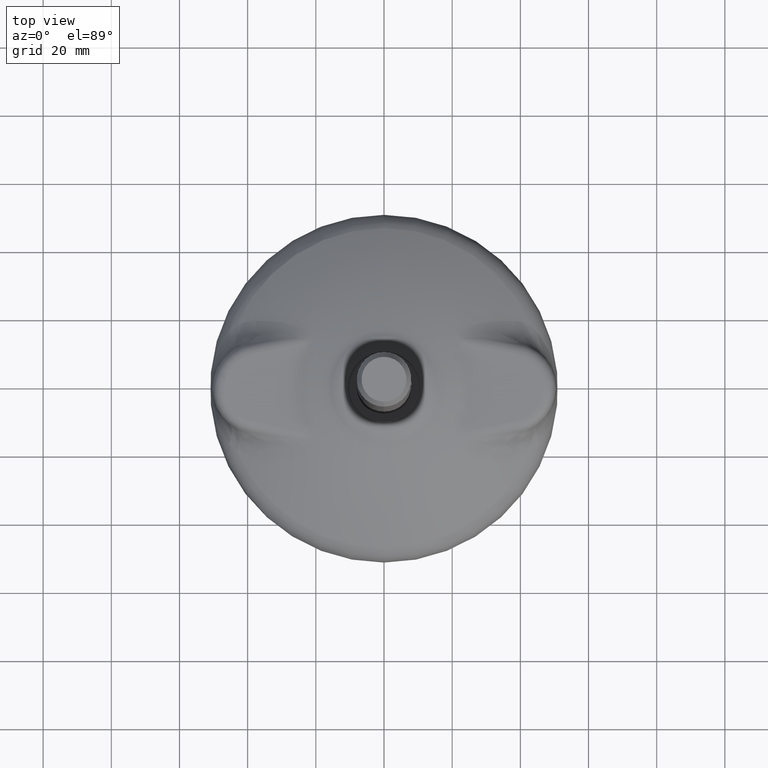
[diagram: clean part render]
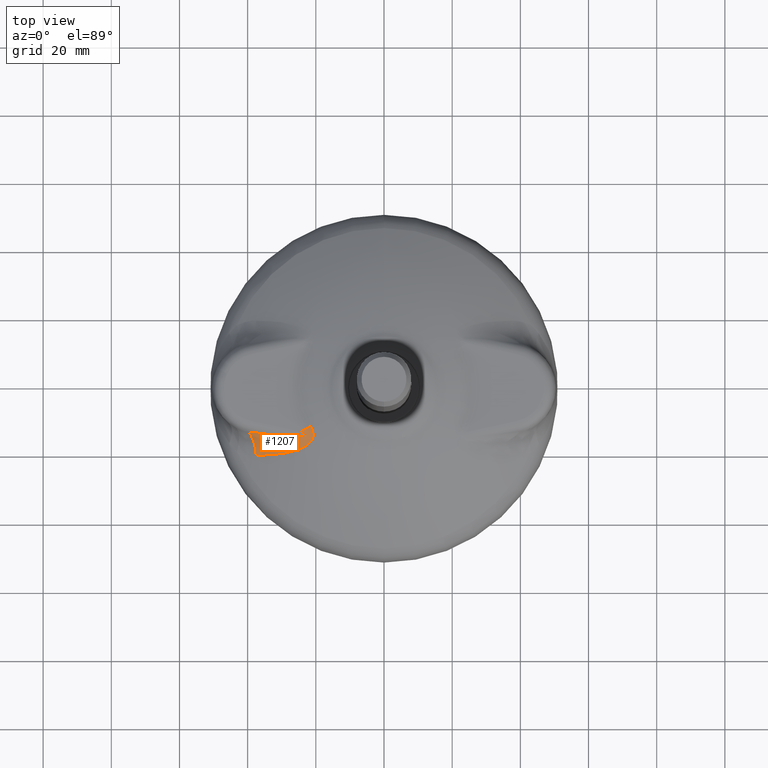
[diagram: same view with one face highlighted and labeled with its STEP entity id]
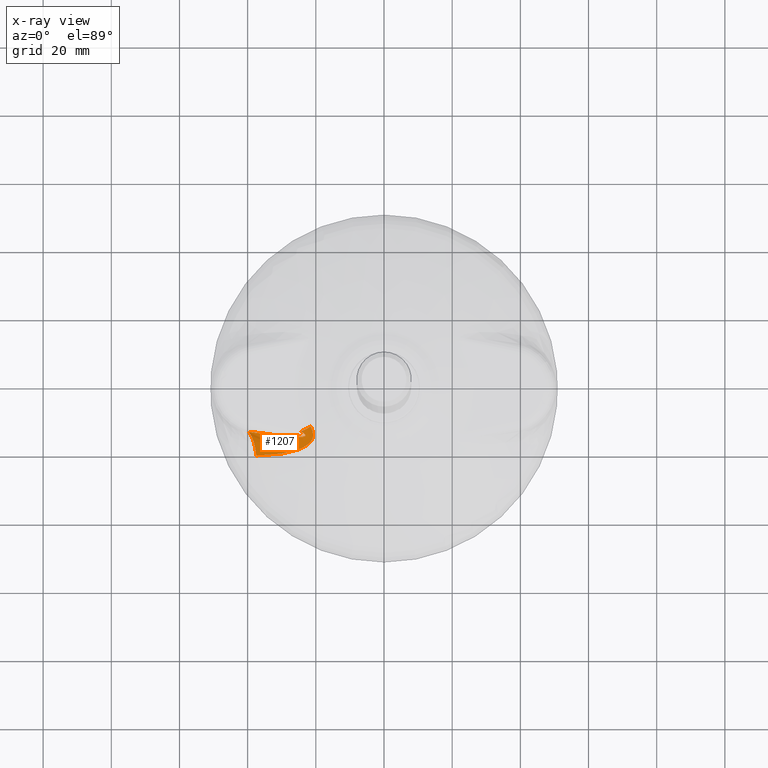
[diagram: x-ray of the same camera — body ghosted, the highlighted face saturated]
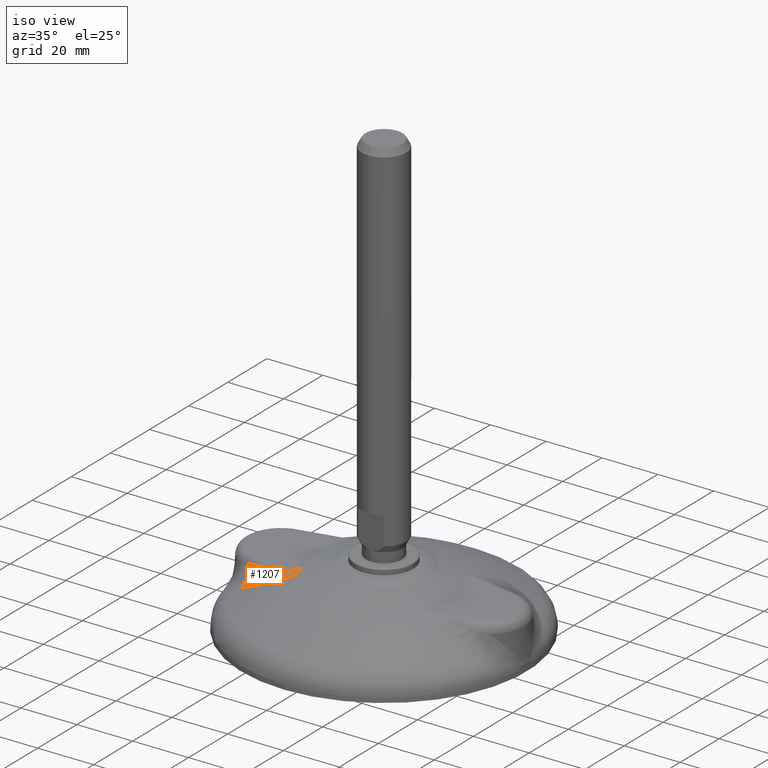
[diagram: same view with one face highlighted and labeled with its STEP entity id]
A machine part, top view. The second image highlights one B-rep face of the part: STEP entity #1207.
The next image is the same camera in x-ray: the body ghosted, the highlighted face saturated — about 0% of this face is hidden behind the body in this view.
A second angle (iso view) of the same face is appended — the face is thin or edge-on in the first view.
In plain terms, the highlighted face is a freeform B-spline surface patch.
Its self-contained STEP definition (entity closure, byte-faithful):
#33=(
BOUNDED_SURFACE()
B_SPLINE_SURFACE(2,3,((#5340,#5341,#5342,#5343,#5344,#5345,#5346,#5347,
#5348,#5349,#5350,#5351,#5352,#5353,#5354,#5355,#5356,#5357,#5358,#5359,
#5360,#5361,#5362,#5363,#5364,#5365,#5366,#5367,#5368,#5369,#5370,#5371,
#5372,#5373,#5374,#5375,#5376,#5377,#5378,#5379,#5380,#5381,#5382,#5383,
#5384,#5385,#5386,#5387,#5388,#5389),(#5390,#5391,#5392,#5393,#5394,#5395,
#5396,#5397,#5398,#5399,#5400,#5401,#5402,#5403,#5404,#5405,#5406,#5407,
#5408,#5409,#5410,#5411,#5412,#5413,#5414,#5415,#5416,#5417,#5418,#5419,
#5420,#5421,#5422,#5423,#5424,#5425,#5426,#5427,#5428,#5429,#5430,#5431,
#5432,#5433,#5434,#5435,#5436,#5437,#5438,#5439),(#5440,#5441,#5442,#5443,
#5444,#5445,#5446,#5447,#5448,#5449,#5450,#5451,#5452,#5453,#5454,#5455,
#5456,#5457,#5458,#5459,#5460,#5461,#5462,#5463,#5464,#5465,#5466,#5467,
#5468,#5469,#5470,#5471,#5472,#5473,#5474,#5475,#5476,#5477,#5478,#5479,
#5480,#5481,#5482,#5483,#5484,#5485,#5486,#5487,#5488,#5489)),
 .UNSPECIFIED.,.F.,.F.,.F.)
B_SPLINE_SURFACE_WITH_KNOTS((3,3),(4,2,2,2,2,2,2,2,2,2,2,2,2,2,2,2,2,2,
2,2,2,2,2,2,4),(0.,1.),(2.298509E-17,0.003111461827844,0.006222923655688,
0.009334385483532,0.010890116397454,0.012445847311376,0.013223712768337,
0.014001578225298,0.01555730913922,0.017113040053142,0.017890905510102,
0.018668770967063,0.019057703695544,0.019446636424024,0.020224501880985,
0.020613434609466,0.020807900973706,0.021002367337946,0.021780232794907,
0.022169165523388,0.022558098251868,0.022947030980349,0.023335963708829,
0.02411382916579,0.024891694622751),.UNSPECIFIED.)
GEOMETRIC_REPRESENTATION_ITEM()
RATIONAL_B_SPLINE_SURFACE(((1.,1.,1.,1.,1.,1.,1.,1.,1.,1.,1.,1.,1.,1.,1.,
1.,1.,1.,1.,1.,1.,1.,1.,1.,1.,1.,1.,1.,1.,1.,1.,1.,1.,1.,1.,1.,1.,1.,1.,
1.,1.,1.,1.,1.,1.,1.,1.,1.,1.,1.),(0.898510834248908,0.905579572441423,
0.912308116967104,0.925126065878921,0.931215731626161,0.942783777935627,
0.948262376442578,0.956028691234639,0.95854204467019,0.963416309284923,
0.965777274821306,0.969200925434751,0.970322481037165,0.972525201378957,
0.973607452985401,0.976773851942338,0.978783066513573,0.982573134624064,
0.984354992046024,0.986815492776913,0.987602208696837,0.989070252964773,
0.989753585728474,0.99068667390055,0.99098231125614,0.991538903665915,0.991797758654842,
0.992506692020472,0.992891548371387,0.993312117955322,0.993426089976647,
0.993553457520245,0.993588616143068,0.993643000508351,0.993662399331255,
0.993720768875207,0.993643962880575,0.993348910787052,0.993220784050269,
0.992914236584693,0.992735352280686,0.992331245123687,0.992106014775601,
0.991613152745867,0.991346337317122,0.990499785167757,0.989871268855994,
0.988511453816972,0.987779839759137,0.987004622672797),(1.,1.,1.,1.,1.,
1.,1.,1.,1.,1.,1.,1.,1.,1.,1.,1.,1.,1.,1.,1.,1.,1.,1.,1.,1.,1.,1.,1.,1.,
1.,1.,1.,1.,1.,1.,1.,1.,1.,1.,1.,1.,1.,1.,1.,1.,1.,1.,1.,1.,1.)))
REPRESENTATION_ITEM('')
SURFACE()
);
#57=B_SPLINE_CURVE_WITH_KNOTS('',3,(#2063,#2064,#2065,#2066,#2067,#2068,
#2069,#2070,#2071,#2072,#2073,#2074,#2075,#2076,#2077,#2078,#2079,#2080,
#2081,#2082,#2083,#2084,#2085,#2086,#2087,#2088,#2089,#2090,#2091,#2092,
#2093,#2094,#2095,#2096,#2097,#2098,#2099,#2100,#2101,#2102,#2103,#2104,
#2105,#2106,#2107,#2108,#2109,#2110,#2111,#2112,#2113,#2114,#2115,#2116,
#2117,#2118,#2119,#2120,#2121,#2122,#2123,#2124,#2125,#2126,#2127,#2128,
#2129,#2130,#2131,#2132,#2133,#2134,#2135,#2136,#2137,#2138,#2139,#2140,
#2141,#2142,#2143,#2144,#2145,#2146,#2147,#2148,#2149,#2150,#2151,#2152,
#2153,#2154,#2155,#2156,#2157,#2158,#2159,#2160,#2161,#2162,#2163,#2164,
#2165,#2166,#2167,#2168,#2169,#2170,#2171,#2172,#2173,#2174,#2175,#2176,
#2177,#2178,#2179,#2180,#2181,#2182,#2183,#2184,#2185,#2186,#2187,#2188,
#2189,#2190,#2191,#2192,#2193,#2194,#2195,#2196,#2197,#2198,#2199,#2200,
#2201,#2202,#2203,#2204,#2205,#2206,#2207,#2208,#2209,#2210,#2211,#2212,
#2213,#2214,#2215,#2216,#2217,#2218,#2219,#2220,#2221,#2222,#2223,#2224,
#2225,#2226,#2227,#2228,#2229,#2230,#2231,#2232,#2233,#2234,#2235,#2236,
#2237,#2238,#2239,#2240,#2241,#2242,#2243,#2244,#2245,#2246,#2247,#2248,
#2249,#2250,#2251,#2252,#2253,#2254,#2255,#2256,#2257,#2258,#2259,#2260,
#2261,#2262,#2263,#2264,#2265,#2266,#2267,#2268,#2269,#2270,#2271,#2272,
#2273,#2274,#2275,#2276,#2277,#2278,#2279,#2280,#2281,#2282,#2283,#2284,
#2285,#2286,#2287,#2288,#2289,#2290,#2291,#2292,#2293,#2294,#2295,#2296,
#2297,#2298,#2299,#2300,#2301,#2302,#2303,#2304,#2305,#2306,#2307,#2308,
#2309,#2310,#2311,#2312,#2313,#2314,#2315),.UNSPECIFIED.,.F.,.F.,(4,3,3,
3,3,3,3,3,3,3,3,3,3,3,3,3,3,3,3,3,3,3,3,3,3,3,3,3,3,3,3,3,3,3,3,3,3,3,3,
3,3,3,3,3,3,3,3,3,3,3,3,3,3,3,3,3,3,3,3,3,3,3,3,3,3,3,3,3,3,3,3,3,3,3,3,
3,3,3,3,3,3,3,3,3,4),(0.,0.129197721236781,0.149987509894002,0.224276501332896,
0.264662235091565,0.29856549277179,0.374999999999998,0.445341528630758,
0.499999999999997,0.517853515961266,0.569796400226128,0.589562739670028,
0.624999999999997,0.625022374115222,0.649533300427536,0.660106406105716,
0.685308507277894,0.687499999999996,0.71117754281104,0.728099209588724,
0.748261641979767,0.749999999999996,0.766085564177398,0.781119846213213,
0.791896872847794,0.803091343308791,0.812499999999996,0.821332193592574,
0.830462768327061,0.83910562481851,0.843749999999996,0.848120168705203,
0.854547394693954,0.859374999999996,0.860278852121137,0.865115814778352,
0.86967705039263,0.871338524752808,0.874999999999996,0.878697846187014,
0.882216837280516,0.882812499999996,0.885725728747919,0.88848952723334,
0.889554847538066,0.890624999999996,0.893080237468437,0.895407169860875,
0.896629171507443,0.898437499999996,0.899734592337904,0.901906821906851,
0.902343749999997,0.902602942043005,0.904426471021501,0.906249999999997,
0.907789698759843,0.909353231817369,0.910156249999997,0.912209189913498,
0.913775305312344,0.914062499999998,0.916446211488564,0.918967849467004,
0.920593698558129,0.921874999999998,0.924690417214462,0.927656983766406,
0.928708668980382,0.929687499999998,0.933367409034133,0.937223305468739,
0.937499999999999,0.938132410202919,0.942372988913798,0.946910639661995,
0.948746516064861,0.953124999999999,0.959586469365242,0.966410373454412,
0.968749999999999,0.972865191358434,0.981736422161939,0.991156493889139,
1.),.UNSPECIFIED.);
#74=B_SPLINE_CURVE_WITH_KNOTS('',3,(#3315,#3316,#3317,#3318,#3319,#3320,
#3321,#3322,#3323,#3324,#3325,#3326,#3327,#3328,#3329,#3330,#3331,#3332,
#3333,#3334,#3335,#3336,#3337,#3338,#3339,#3340,#3341,#3342,#3343,#3344,
#3345,#3346,#3347,#3348,#3349,#3350,#3351,#3352,#3353,#3354,#3355,#3356,
#3357,#3358,#3359,#3360,#3361,#3362,#3363,#3364,#3365,#3366,#3367,#3368,
#3369,#3370,#3371,#3372,#3373,#3374,#3375,#3376,#3377,#3378,#3379,#3380,
#3381,#3382,#3383,#3384,#3385,#3386,#3387,#3388,#3389,#3390,#3391,#3392,
#3393,#3394,#3395,#3396,#3397,#3398,#3399,#3400,#3401,#3402,#3403,#3404,
#3405,#3406,#3407,#3408,#3409,#3410,#3411,#3412,#3413,#3414,#3415,#3416,
#3417,#3418,#3419,#3420,#3421,#3422,#3423,#3424,#3425,#3426,#3427,#3428,
#3429,#3430,#3431,#3432,#3433,#3434,#3435,#3436,#3437,#3438,#3439,#3440,
#3441,#3442,#3443,#3444,#3445,#3446,#3447,#3448,#3449,#3450,#3451,#3452,
#3453,#3454,#3455,#3456,#3457,#3458,#3459,#3460,#3461,#3462,#3463,#3464,
#3465,#3466,#3467,#3468),.UNSPECIFIED.,.F.,.F.,(4,3,3,3,3,3,3,3,3,3,3,3,
3,3,3,3,3,3,3,3,3,3,3,3,3,3,3,3,3,3,3,3,3,3,3,3,3,3,3,3,3,3,3,3,3,3,3,3,
3,3,3,4),(0.,0.030204811064784,0.03125,0.0502740707823176,0.0604664544251353,
0.062500000000001,0.074541883804142,0.0756288984887031,0.078125000000001,
0.0908348487928982,0.093750000000002,0.105255062287116,0.106099535359361,
0.109375000000002,0.119340557230366,0.121432066182604,0.125000000000002,
0.152329162091134,0.156250000000003,0.160104553921435,0.167899058199915,
0.171875000000003,0.183527053335978,0.187500000000003,0.214904397286689,
0.218750000000004,0.230645060430719,0.234375000000004,0.246397942669153,
0.250000000000004,0.277910693240157,0.281250000000004,0.309424038940148,
0.312500000000004,0.363404063042249,0.372371779612796,0.375000000000004,
0.43168552653651,0.435247778132894,0.437500000000004,0.466668689002127,
0.468750000000004,0.498076749880921,0.500000000000004,0.560864087320551,
0.623625116674514,0.625000000000003,0.749106126180359,0.750000000000002,
0.874559929998551,0.875000000000001,1.),.UNSPECIFIED.);
#228=FACE_OUTER_BOUND('',#314,.T.);
#314=EDGE_LOOP('',(#876,#877,#878,#879));
#415=CIRCLE('',#1345,10.);
#417=CIRCLE('',#1347,10.);
#473=VERTEX_POINT('',#1812);
#477=VERTEX_POINT('',#2061);
#499=VERTEX_POINT('',#3312);
#500=VERTEX_POINT('',#3314);
#583=EDGE_CURVE('',#477,#473,#57,.T.);
#610=EDGE_CURVE('',#499,#500,#74,.T.);
#647=EDGE_CURVE('',#477,#500,#415,.T.);
#649=EDGE_CURVE('',#473,#499,#417,.T.);
#876=ORIENTED_EDGE('',*,*,#647,.T.);
#877=ORIENTED_EDGE('',*,*,#610,.F.);
#878=ORIENTED_EDGE('',*,*,#649,.F.);
#879=ORIENTED_EDGE('',*,*,#583,.F.);
#1207=ADVANCED_FACE('',(#228),#33,.T.);
#1345=AXIS2_PLACEMENT_3D('',#5248,#1569,#1570);
#1347=AXIS2_PLACEMENT_3D('',#5490,#1573,#1574);
#1569=DIRECTION('center_axis',(-0.908039969503642,0.015589487399068,-0.418593336863428));
#1570=DIRECTION('ref_axis',(-0.418644211949312,5.20417042793042E-18,0.908150331058322));
#1573=DIRECTION('center_axis',(0.468711974674446,-0.883351054109736,2.326695E-15));
#1574=DIRECTION('ref_axis',(0.883351054109736,0.468711974674446,0.));
#1812=CARTESIAN_POINT('',(-24.3071728847044,-12.8975484305336,18.));
#2061=CARTESIAN_POINT('',(-39.6508092109384,-12.9415398394903,15.840422178905));
#2063=CARTESIAN_POINT('Ctrl Pts',(-39.6508092109384,-12.9415398394903,15.840422178905));
#2064=CARTESIAN_POINT('Ctrl Pts',(-38.8608406765445,-13.068222442973,15.9376983131238));
#2065=CARTESIAN_POINT('Ctrl Pts',(-38.0701524372592,-13.190383848039,16.0336514400586));
#2066=CARTESIAN_POINT('Ctrl Pts',(-37.2785687658484,-13.3077290570127,16.1283881128877));
#2067=CARTESIAN_POINT('Ctrl Pts',(-37.1511914632489,-13.3266116044071,16.1436326186526));
#2068=CARTESIAN_POINT('Ctrl Pts',(-37.0237910348323,-13.3453693530049,16.1588456123139));
#2069=CARTESIAN_POINT('Ctrl Pts',(-36.8963668197713,-13.3640009673947,16.1740275222398));
#2070=CARTESIAN_POINT('Ctrl Pts',(-36.4410367258559,-13.4305780675622,16.2282776541246));
#2071=CARTESIAN_POINT('Ctrl Pts',(-35.9853920536969,-13.4955518377664,16.2821305069727));
#2072=CARTESIAN_POINT('Ctrl Pts',(-35.529479506415,-13.558778042943,16.3356151750624));
#2073=CARTESIAN_POINT('Ctrl Pts',(-35.2816317109995,-13.5931497128146,16.3646910519023));
#2074=CARTESIAN_POINT('Ctrl Pts',(-35.0337078532916,-13.6270043882334,16.3936577627818));
#2075=CARTESIAN_POINT('Ctrl Pts',(-34.7857050893341,-13.6603194048681,16.4225212378121));
#2076=CARTESIAN_POINT('Ctrl Pts',(-34.5775102435476,-13.6882868945847,16.4467517207185));
#2077=CARTESIAN_POINT('Ctrl Pts',(-34.3692569338344,-13.7158744506831,16.4709097839303));
#2078=CARTESIAN_POINT('Ctrl Pts',(-34.1609337729318,-13.7430693924291,16.4950000502192));
#2079=CARTESIAN_POINT('Ctrl Pts',(-33.6912715859525,-13.8043800779999,16.5493112804307));
#2080=CARTESIAN_POINT('Ctrl Pts',(-33.2212350940584,-13.8637142470373,16.6032755486777));
#2081=CARTESIAN_POINT('Ctrl Pts',(-32.7508851064067,-13.9207346777285,16.6569675257322));
#2082=CARTESIAN_POINT('Ctrl Pts',(-32.3180290794281,-13.9732097234043,16.7063794455337));
#2083=CARTESIAN_POINT('Ctrl Pts',(-31.8850678580336,-14.0237063133245,16.7555424944819));
#2084=CARTESIAN_POINT('Ctrl Pts',(-31.4518640372888,-14.0719658421515,16.8045375820086));
#2085=CARTESIAN_POINT('Ctrl Pts',(-31.1152455546635,-14.1094656253668,16.842608926788));
#2086=CARTESIAN_POINT('Ctrl Pts',(-30.7784939977113,-14.1456014067998,16.8805804889869));
#2087=CARTESIAN_POINT('Ctrl Pts',(-30.4416631651392,-14.1801331863848,16.9185036887527));
#2088=CARTESIAN_POINT('Ctrl Pts',(-30.331641525402,-14.1914125665531,16.9308908345209));
#2089=CARTESIAN_POINT('Ctrl Pts',(-30.2216168848694,-14.2025200405108,16.9432723195816));
#2090=CARTESIAN_POINT('Ctrl Pts',(-30.1115812411369,-14.2134478673479,16.9556510773494));
#2091=CARTESIAN_POINT('Ctrl Pts',(-29.7914443717491,-14.245241204072,16.991665741546));
#2092=CARTESIAN_POINT('Ctrl Pts',(-29.4712054657733,-14.2755230247145,17.0276564129207));
#2093=CARTESIAN_POINT('Ctrl Pts',(-29.1508067089835,-14.3039629097578,17.0637112019618));
#2094=CARTESIAN_POINT('Ctrl Pts',(-29.0288822014452,-14.3147854204725,17.0774314874032));
#2095=CARTESIAN_POINT('Ctrl Pts',(-28.9069348823041,-14.32534081377,17.0911610686767));
#2096=CARTESIAN_POINT('Ctrl Pts',(-28.7849629196435,-14.3356093477751,17.1049048558053));
#2097=CARTESIAN_POINT('Ctrl Pts',(-28.5662905546349,-14.3540188622822,17.1295448334694));
#2098=CARTESIAN_POINT('Ctrl Pts',(-28.3475440971763,-14.3715014348183,17.1542311715295));
#2099=CARTESIAN_POINT('Ctrl Pts',(-28.1287718083451,-14.3878847775933,17.1789991651755));
#2100=CARTESIAN_POINT('Ctrl Pts',(-28.1286336815161,-14.387895121587,17.1790148030081));
#2101=CARTESIAN_POINT('Ctrl Pts',(-28.128495554647,-14.3879054651443,17.1790304408767));
#2102=CARTESIAN_POINT('Ctrl Pts',(-28.1283574277377,-14.3879158082651,17.1790460787814));
#2103=CARTESIAN_POINT('Ctrl Pts',(-27.9770388856878,-14.3992467355262,17.1961774614575));
#2104=CARTESIAN_POINT('Ctrl Pts',(-27.8255585948224,-14.4100614435275,17.2133649463955));
#2105=CARTESIAN_POINT('Ctrl Pts',(-27.6741195862456,-14.4202711455026,17.2306038841186));
#2106=CARTESIAN_POINT('Ctrl Pts',(-27.6087944075446,-14.4246752327472,17.2380401232882));
#2107=CARTESIAN_POINT('Ctrl Pts',(-27.5434774342817,-14.4289665269655,17.2454859000697));
#2108=CARTESIAN_POINT('Ctrl Pts',(-27.4781879395332,-14.4331368029432,17.2529406268619));
#2109=CARTESIAN_POINT('Ctrl Pts',(-27.3225636128484,-14.4430770910955,17.2707097464133));
#2110=CARTESIAN_POINT('Ctrl Pts',(-27.1669517062652,-14.4523539441815,17.2885426474129));
#2111=CARTESIAN_POINT('Ctrl Pts',(-27.0112023604582,-14.4608400252374,17.3064898350563));
#2112=CARTESIAN_POINT('Ctrl Pts',(-26.9976589040823,-14.4615779472362,17.308050464102));
#2113=CARTESIAN_POINT('Ctrl Pts',(-26.9841144362974,-14.4623098720571,17.3096119570987));
#2114=CARTESIAN_POINT('Ctrl Pts',(-26.9705688749999,-14.4630357054968,17.3111743471445));
#2115=CARTESIAN_POINT('Ctrl Pts',(-26.8242185794747,-14.4708778270642,17.3280548764856));
#2116=CARTESIAN_POINT('Ctrl Pts',(-26.6778857692769,-14.4780036294224,17.3450225731596));
#2117=CARTESIAN_POINT('Ctrl Pts',(-26.5314867324592,-14.4842845990532,17.3621192158238));
#2118=CARTESIAN_POINT('Ctrl Pts',(-26.4268595024559,-14.4887734295024,17.3743377003384));
#2119=CARTESIAN_POINT('Ctrl Pts',(-26.3221991776009,-14.4928302924364,17.3866220369205));
#2120=CARTESIAN_POINT('Ctrl Pts',(-26.2174891648556,-14.4963994946404,17.3989874588292));
#2121=CARTESIAN_POINT('Ctrl Pts',(-26.0927255360488,-14.5006522552622,17.4137210537225));
#2122=CARTESIAN_POINT('Ctrl Pts',(-25.9678678120945,-14.5042270737452,17.4285690900731));
#2123=CARTESIAN_POINT('Ctrl Pts',(-25.8430260358003,-14.506945312241,17.4435611564805));
#2124=CARTESIAN_POINT('Ctrl Pts',(-25.832262468247,-14.5071796724411,17.4448537375726));
#2125=CARTESIAN_POINT('Ctrl Pts',(-25.8214990467861,-14.5074076482305,17.4461473897264));
#2126=CARTESIAN_POINT('Ctrl Pts',(-25.8107358579463,-14.5076291152299,17.447442132154));
#2127=CARTESIAN_POINT('Ctrl Pts',(-25.7111407441544,-14.5096784178421,17.4594227841083));
#2128=CARTESIAN_POINT('Ctrl Pts',(-25.6117182972278,-14.511169956238,17.4714776175536));
#2129=CARTESIAN_POINT('Ctrl Pts',(-25.512274721814,-14.5120028891809,17.4836551808326));
#2130=CARTESIAN_POINT('Ctrl Pts',(-25.4193303436788,-14.5127813852686,17.4950368718213));
#2131=CARTESIAN_POINT('Ctrl Pts',(-25.3263673434103,-14.5129846426066,17.5065257587182));
#2132=CARTESIAN_POINT('Ctrl Pts',(-25.233265298637,-14.5125066336175,17.5181617500416));
#2133=CARTESIAN_POINT('Ctrl Pts',(-25.166526945993,-14.5121639823626,17.5265027794378));
#2134=CARTESIAN_POINT('Ctrl Pts',(-25.0997178733487,-14.5114708090919,17.5349194022707));
#2135=CARTESIAN_POINT('Ctrl Pts',(-25.0328078658434,-14.5103792420448,17.5434264816615));
#2136=CARTESIAN_POINT('Ctrl Pts',(-24.9633061258961,-14.5092453935837,17.5522630793781));
#2137=CARTESIAN_POINT('Ctrl Pts',(-24.8936283115099,-14.5076690159417,17.561208496003));
#2138=CARTESIAN_POINT('Ctrl Pts',(-24.8239531750694,-14.5055709856964,17.5702597343937));
#2139=CARTESIAN_POINT('Ctrl Pts',(-24.7653930635424,-14.5038076467002,17.5778670611488));
#2140=CARTESIAN_POINT('Ctrl Pts',(-24.7068352989126,-14.5016756546357,17.5855491193451));
#2141=CARTESIAN_POINT('Ctrl Pts',(-24.6484135588321,-14.4991202962619,17.5933025536069));
#2142=CARTESIAN_POINT('Ctrl Pts',(-24.5935712858763,-14.4967215032571,17.6005809393165));
#2143=CARTESIAN_POINT('Ctrl Pts',(-24.5387158042711,-14.4939444637101,17.6079397196296));
#2144=CARTESIAN_POINT('Ctrl Pts',(-24.4839032644117,-14.4907250561944,17.6153870051057));
#2145=CARTESIAN_POINT('Ctrl Pts',(-24.4272389729956,-14.4873968862881,17.6230858848795));
#2146=CARTESIAN_POINT('Ctrl Pts',(-24.3705745878582,-14.4835993975644,17.6308842741434));
#2147=CARTESIAN_POINT('Ctrl Pts',(-24.3139505986267,-14.4792302042203,17.6388014758714));
#2148=CARTESIAN_POINT('Ctrl Pts',(-24.260351233074,-14.4750943954508,17.6462957728175));
#2149=CARTESIAN_POINT('Ctrl Pts',(-24.2067879031378,-14.4704463980978,17.6538965268576));
#2150=CARTESIAN_POINT('Ctrl Pts',(-24.1533371335224,-14.4651801530116,17.6616195047035));
#2151=CARTESIAN_POINT('Ctrl Pts',(-24.1246145198728,-14.4623502531976,17.6657695685938));
#2152=CARTESIAN_POINT('Ctrl Pts',(-24.0959251577584,-14.4593414861241,17.6699549156381));
#2153=CARTESIAN_POINT('Ctrl Pts',(-24.0672866738856,-14.456134776565,17.674177915579));
#2154=CARTESIAN_POINT('Ctrl Pts',(-24.0403390219206,-14.4531173929098,17.6781515872706));
#2155=CARTESIAN_POINT('Ctrl Pts',(-24.013429200111,-14.4499237780902,17.6821597697727));
#2156=CARTESIAN_POINT('Ctrl Pts',(-23.9865451600678,-14.4465319079358,17.6862090686134));
#2157=CARTESIAN_POINT('Ctrl Pts',(-23.9470066862686,-14.4415434698509,17.6921643899065));
#2158=CARTESIAN_POINT('Ctrl Pts',(-23.9075262076634,-14.43612520755,17.6982086252875));
#2159=CARTESIAN_POINT('Ctrl Pts',(-23.8681176046594,-14.4301832247537,17.704362089799));
#2160=CARTESIAN_POINT('Ctrl Pts',(-23.8385170925102,-14.4257200943572,17.7089840679242));
#2161=CARTESIAN_POINT('Ctrl Pts',(-23.8089578644153,-14.4209611563185,17.7136676602227));
#2162=CARTESIAN_POINT('Ctrl Pts',(-23.7794635537499,-14.4158585045903,17.7184212436134));
#2163=CARTESIAN_POINT('Ctrl Pts',(-23.7739414587221,-14.414903156691,17.7193112369245));
#2164=CARTESIAN_POINT('Ctrl Pts',(-23.7684187315329,-14.413935234404,17.7202041566271));
#2165=CARTESIAN_POINT('Ctrl Pts',(-23.7628951278812,-14.4129542619307,17.7211001441901));
#2166=CARTESIAN_POINT('Ctrl Pts',(-23.7333355749728,-14.4077045898771,17.7258950196815));
#2167=CARTESIAN_POINT('Ctrl Pts',(-23.7038387036693,-14.4020964541569,17.7307635914634));
#2168=CARTESIAN_POINT('Ctrl Pts',(-23.6744301589303,-14.3960611106239,17.735718978993));
#2169=CARTESIAN_POINT('Ctrl Pts',(-23.6466980238833,-14.3903698068412,17.7403918887682));
#2170=CARTESIAN_POINT('Ctrl Pts',(-23.6190442160118,-14.3842986082819,17.7451420233104));
#2171=CARTESIAN_POINT('Ctrl Pts',(-23.5915352400702,-14.3777783387463,17.7499776475693));
#2172=CARTESIAN_POINT('Ctrl Pts',(-23.5815148284829,-14.3754032672588,17.7517390706575));
#2173=CARTESIAN_POINT('Ctrl Pts',(-23.5715141011455,-14.3729684953104,17.7535118077215));
#2174=CARTESIAN_POINT('Ctrl Pts',(-23.5615379827538,-14.3704702654564,17.7552961495427));
#2175=CARTESIAN_POINT('Ctrl Pts',(-23.5395531050876,-14.3649647897226,17.7592283940405));
#2176=CARTESIAN_POINT('Ctrl Pts',(-23.5176680412522,-14.3591498689433,17.7632197161479));
#2177=CARTESIAN_POINT('Ctrl Pts',(-23.4959369272894,-14.3529755052632,17.7672752886551));
#2178=CARTESIAN_POINT('Ctrl Pts',(-23.4739899492322,-14.3467398090888,17.7713711468324));
#2179=CARTESIAN_POINT('Ctrl Pts',(-23.452196894888,-14.3401388796701,17.7755324533326));
#2180=CARTESIAN_POINT('Ctrl Pts',(-23.430566557747,-14.333085785263,17.7797784843235));
#2181=CARTESIAN_POINT('Ctrl Pts',(-23.4099824231187,-14.3263738304804,17.7838191459638));
#2182=CARTESIAN_POINT('Ctrl Pts',(-23.3895454483719,-14.3192524589962,17.787936541329));
#2183=CARTESIAN_POINT('Ctrl Pts',(-23.369308580707,-14.311631490548,17.7921453831363));
#2184=CARTESIAN_POINT('Ctrl Pts',(-23.3658830683068,-14.3103414825115,17.7928578174932));
#2185=CARTESIAN_POINT('Ctrl Pts',(-23.3624634039609,-14.3090371212125,17.7935728672684));
#2186=CARTESIAN_POINT('Ctrl Pts',(-23.3590499888376,-14.30771792072,17.7942905978221));
#2187=CARTESIAN_POINT('Ctrl Pts',(-23.3423558786635,-14.3012660601735,17.7978008280476));
#2188=CARTESIAN_POINT('Ctrl Pts',(-23.3258158405184,-14.2944639956018,17.801373506138));
#2189=CARTESIAN_POINT('Ctrl Pts',(-23.3094324840477,-14.2872201555662,17.8050297067647));
#2190=CARTESIAN_POINT('Ctrl Pts',(-23.2938894904424,-14.2803478788413,17.8084983673571));
#2191=CARTESIAN_POINT('Ctrl Pts',(-23.2784873443242,-14.2730780426775,17.8120422079298));
#2192=CARTESIAN_POINT('Ctrl Pts',(-23.2632727243565,-14.2653174975167,17.8156773757669));
#2193=CARTESIAN_POINT('Ctrl Pts',(-23.2574081710376,-14.2623261555722,17.8170785698584));
#2194=CARTESIAN_POINT('Ctrl Pts',(-23.2515719803754,-14.2592617377026,17.8184933122257));
#2195=CARTESIAN_POINT('Ctrl Pts',(-23.2457688293609,-14.2561182352033,17.819922444889));
#2196=CARTESIAN_POINT('Ctrl Pts',(-23.2399393559926,-14.2529604741772,17.8213580599159));
#2197=CARTESIAN_POINT('Ctrl Pts',(-23.2341436041961,-14.2497227787977,17.8228081746419));
#2198=CARTESIAN_POINT('Ctrl Pts',(-23.2283880487246,-14.2463984715525,17.8242735625692));
#2199=CARTESIAN_POINT('Ctrl Pts',(-23.2151831494714,-14.2387715548321,17.8276355838447));
#2200=CARTESIAN_POINT('Ctrl Pts',(-23.202296916366,-14.2307544759193,17.8310497561908));
#2201=CARTESIAN_POINT('Ctrl Pts',(-23.1897814632753,-14.2222512320705,17.8345321809013));
#2202=CARTESIAN_POINT('Ctrl Pts',(-23.1779200390437,-14.2141923482325,17.8378326220878));
#2203=CARTESIAN_POINT('Ctrl Pts',(-23.1663914990516,-14.20569683591,17.841194374809));
#2204=CARTESIAN_POINT('Ctrl Pts',(-23.1552841892139,-14.1966682001399,17.8446292805052));
#2205=CARTESIAN_POINT('Ctrl Pts',(-23.1494511229183,-14.1919267612338,17.8464331405702));
#2206=CARTESIAN_POINT('Ctrl Pts',(-23.1437349866242,-14.1870380379627,17.848257143201));
#2207=CARTESIAN_POINT('Ctrl Pts',(-23.1381541226036,-14.1819861921693,17.8501027687853));
#2208=CARTESIAN_POINT('Ctrl Pts',(-23.1298955122737,-14.1745104275385,17.8528339413169));
#2209=CARTESIAN_POINT('Ctrl Pts',(-23.1219312717896,-14.166669103445,17.8556146154771));
#2210=CARTESIAN_POINT('Ctrl Pts',(-23.1143690303285,-14.1584514767874,17.8584343034252));
#2211=CARTESIAN_POINT('Ctrl Pts',(-23.1089447252329,-14.1525570717513,17.86045683177));
#2212=CARTESIAN_POINT('Ctrl Pts',(-23.1037484527743,-14.1464919448967,17.8624915447589));
#2213=CARTESIAN_POINT('Ctrl Pts',(-23.0988210184157,-14.1402536268822,17.8645340816184));
#2214=CARTESIAN_POINT('Ctrl Pts',(-23.0905690857662,-14.12980636846,17.8679547008236));
#2215=CARTESIAN_POINT('Ctrl Pts',(-23.08303896726,-14.1188510737918,17.8714063223604));
#2216=CARTESIAN_POINT('Ctrl Pts',(-23.0763681793033,-14.1072921884752,17.8748943771028));
#2217=CARTESIAN_POINT('Ctrl Pts',(-23.0750263990866,-14.1049672032192,17.8755959738075));
#2218=CARTESIAN_POINT('Ctrl Pts',(-23.073719549616,-14.1026177603298,17.8762990332994));
#2219=CARTESIAN_POINT('Ctrl Pts',(-23.0724490021163,-14.1002430246595,17.8770035824346));
#2220=CARTESIAN_POINT('Ctrl Pts',(-23.071695295025,-14.0988342972289,17.8774215311375));
#2221=CARTESIAN_POINT('Ctrl Pts',(-23.0709555604596,-14.0974189099964,17.877839338988));
#2222=CARTESIAN_POINT('Ctrl Pts',(-23.0702301169083,-14.095997060691,17.8782569214454));
#2223=CARTESIAN_POINT('Ctrl Pts',(-23.0651263053767,-14.0859937311849,17.8811947960153));
#2224=CARTESIAN_POINT('Ctrl Pts',(-23.0607348923216,-14.0756694242407,17.8841212688261));
#2225=CARTESIAN_POINT('Ctrl Pts',(-23.0571360515384,-14.0650999673798,17.8870088440551));
#2226=CARTESIAN_POINT('Ctrl Pts',(-23.0535372107552,-14.054530510519,17.8898964192841));
#2227=CARTESIAN_POINT('Ctrl Pts',(-23.0507309972494,-14.0437158903828,17.8927450903886));
#2228=CARTESIAN_POINT('Ctrl Pts',(-23.0487442689106,-14.0327440898904,17.8955309648747));
#2229=CARTESIAN_POINT('Ctrl Pts',(-23.047066772586,-14.0234800377087,17.8978832211547));
#2230=CARTESIAN_POINT('Ctrl Pts',(-23.0459625190423,-14.0140365364271,17.9002076785708));
#2231=CARTESIAN_POINT('Ctrl Pts',(-23.0454395634671,-14.0045181747165,17.9024789397688));
#2232=CARTESIAN_POINT('Ctrl Pts',(-23.0449085126209,-13.9948524702449,17.9047853597375));
#2233=CARTESIAN_POINT('Ctrl Pts',(-23.0449768831392,-13.9851095721866,17.907036922376));
#2234=CARTESIAN_POINT('Ctrl Pts',(-23.0456002801366,-13.9754109916013,17.9092106784012));
#2235=CARTESIAN_POINT('Ctrl Pts',(-23.0459204518922,-13.9704298775031,17.9103271022622));
#2236=CARTESIAN_POINT('Ctrl Pts',(-23.0463861763029,-13.9654606463829,17.9114230614576));
#2237=CARTESIAN_POINT('Ctrl Pts',(-23.0469862800171,-13.9605209312062,17.9124958059475));
#2238=CARTESIAN_POINT('Ctrl Pts',(-23.0485204630453,-13.9478924021556,17.9152383092031));
#2239=CARTESIAN_POINT('Ctrl Pts',(-23.0509556563539,-13.9352898609911,17.9178650139554));
#2240=CARTESIAN_POINT('Ctrl Pts',(-23.0541406591949,-13.9228518366715,17.9203618723956));
#2241=CARTESIAN_POINT('Ctrl Pts',(-23.0565703854435,-13.9133633069342,17.9222666375698));
#2242=CARTESIAN_POINT('Ctrl Pts',(-23.0594352138249,-13.9039708035533,17.9240959258661));
#2243=CARTESIAN_POINT('Ctrl Pts',(-23.0626483084282,-13.8947402747395,17.9258449103005));
#2244=CARTESIAN_POINT('Ctrl Pts',(-23.0632375266312,-13.893047577738,17.9261656395639));
#2245=CARTESIAN_POINT('Ctrl Pts',(-23.0638384050168,-13.8913607170497,17.9264835823884));
#2246=CARTESIAN_POINT('Ctrl Pts',(-23.0644502720819,-13.889680168117,17.9267987095812));
#2247=CARTESIAN_POINT('Ctrl Pts',(-23.0695287593073,-13.875731637834,17.9294142604329));
#2248=CARTESIAN_POINT('Ctrl Pts',(-23.0754309807742,-13.8620315662147,17.9318711157546));
#2249=CARTESIAN_POINT('Ctrl Pts',(-23.0819561241459,-13.848607218915,17.934187096467));
#2250=CARTESIAN_POINT('Ctrl Pts',(-23.0888588258444,-13.8344061110422,17.9366370846261));
#2251=CARTESIAN_POINT('Ctrl Pts',(-23.0964587863431,-13.820513387316,17.9389294464301));
#2252=CARTESIAN_POINT('Ctrl Pts',(-23.1045740219814,-13.8069401556084,17.9410835332075));
#2253=CARTESIAN_POINT('Ctrl Pts',(-23.1098063941932,-13.7981886906384,17.9424724003087));
#2254=CARTESIAN_POINT('Ctrl Pts',(-23.1152540970801,-13.7895696232787,17.943803747579));
#2255=CARTESIAN_POINT('Ctrl Pts',(-23.1208790226678,-13.7810821824427,17.945082350677));
#2256=CARTESIAN_POINT('Ctrl Pts',(-23.1253119219481,-13.7743933881135,17.9460899940075));
#2257=CARTESIAN_POINT('Ctrl Pts',(-23.1298567452762,-13.7677807462278,17.9470659509595));
#2258=CARTESIAN_POINT('Ctrl Pts',(-23.1344993764442,-13.7612402266503,17.9480128565877));
#2259=CARTESIAN_POINT('Ctrl Pts',(-23.1447006790289,-13.7468686737835,17.9500935023429));
#2260=CARTESIAN_POINT('Ctrl Pts',(-23.1553582770327,-13.7328641787275,17.9520315159271));
#2261=CARTESIAN_POINT('Ctrl Pts',(-23.1663614564109,-13.7191731034543,17.9538527601176));
#2262=CARTESIAN_POINT('Ctrl Pts',(-23.1779553557949,-13.7047470049858,17.9557717801728));
#2263=CARTESIAN_POINT('Ctrl Pts',(-23.1899331801047,-13.6906688495038,17.9575611385898));
#2264=CARTESIAN_POINT('Ctrl Pts',(-23.2022226078905,-13.6768679696822,17.9592459761304));
#2265=CARTESIAN_POINT('Ctrl Pts',(-23.2065793648565,-13.6719753839289,17.9598432722633));
#2266=CARTESIAN_POINT('Ctrl Pts',(-23.2109757682877,-13.667117578853,17.9604273887092));
#2267=CARTESIAN_POINT('Ctrl Pts',(-23.2154101083904,-13.6622911962955,17.9609993090456));
#2268=CARTESIAN_POINT('Ctrl Pts',(-23.2195372650589,-13.6577991554291,17.961531610307));
#2269=CARTESIAN_POINT('Ctrl Pts',(-23.223697312005,-13.6533343305042,17.9620533440046));
#2270=CARTESIAN_POINT('Ctrl Pts',(-23.2278895576761,-13.6488939187774,17.9625652409653));
#2271=CARTESIAN_POINT('Ctrl Pts',(-23.2436502787906,-13.6322002189441,17.9644897143552));
#2272=CARTESIAN_POINT('Ctrl Pts',(-23.2598469917037,-13.615867975265,17.9662736757018));
#2273=CARTESIAN_POINT('Ctrl Pts',(-23.2763844977158,-13.5998420773039,17.9679414599724));
#2274=CARTESIAN_POINT('Ctrl Pts',(-23.2937128908576,-13.5830497592774,17.9696890041));
#2275=CARTESIAN_POINT('Ctrl Pts',(-23.3114157030975,-13.5665937548837,17.9713089755672));
#2276=CARTESIAN_POINT('Ctrl Pts',(-23.3294389492483,-13.5504029518344,17.9728243508151));
#2277=CARTESIAN_POINT('Ctrl Pts',(-23.3307322759053,-13.5492411191098,17.9729330923363));
#2278=CARTESIAN_POINT('Ctrl Pts',(-23.3320272742735,-13.5480806489786,17.9730412932784));
#2279=CARTESIAN_POINT('Ctrl Pts',(-23.3333239342398,-13.546921513797,17.9731489612323));
#2280=CARTESIAN_POINT('Ctrl Pts',(-23.3362875670544,-13.5442722062299,17.9733950460115));
#2281=CARTESIAN_POINT('Ctrl Pts',(-23.3392594679509,-13.5416302352338,17.9736383130597));
#2282=CARTESIAN_POINT('Ctrl Pts',(-23.3422393114795,-13.5389954564807,17.9738788355373));
#2283=CARTESIAN_POINT('Ctrl Pts',(-23.3622204265391,-13.5213281471349,17.9754916407913));
#2284=CARTESIAN_POINT('Ctrl Pts',(-23.3825268357895,-13.5040129183913,17.9769782989845));
#2285=CARTESIAN_POINT('Ctrl Pts',(-23.4030494640432,-13.4870256283053,17.9783579467261));
#2286=CARTESIAN_POINT('Ctrl Pts',(-23.4250097967712,-13.4688483004395,17.9798342451358));
#2287=CARTESIAN_POINT('Ctrl Pts',(-23.4472179808078,-13.4510463020978,17.9811880228568));
#2288=CARTESIAN_POINT('Ctrl Pts',(-23.4695990324857,-13.4335769114339,17.9824384813127));
#2289=CARTESIAN_POINT('Ctrl Pts',(-23.4786541244103,-13.4265090157602,17.9829444010715));
#2290=CARTESIAN_POINT('Ctrl Pts',(-23.4877381248752,-13.4194954369662,17.9834333616771));
#2291=CARTESIAN_POINT('Ctrl Pts',(-23.4968483635423,-13.4125328906228,17.9839064525766));
#2292=CARTESIAN_POINT('Ctrl Pts',(-23.5185758793965,-13.3959275258693,17.9850347534253));
#2293=CARTESIAN_POINT('Ctrl Pts',(-23.5404696384315,-13.3795923521185,17.9860753031308));
#2294=CARTESIAN_POINT('Ctrl Pts',(-23.5625552970558,-13.363455173893,17.9870416501868));
#2295=CARTESIAN_POINT('Ctrl Pts',(-23.5951478128048,-13.3396410217139,17.9884677195731));
#2296=CARTESIAN_POINT('Ctrl Pts',(-23.6280862234535,-13.3163091600259,17.9897291389191));
#2297=CARTESIAN_POINT('Ctrl Pts',(-23.6612851746217,-13.2933858914087,17.990853607297));
#2298=CARTESIAN_POINT('Ctrl Pts',(-23.6963463110022,-13.2691768179594,17.9920411490043));
#2299=CARTESIAN_POINT('Ctrl Pts',(-23.7316982869749,-13.2454234494394,17.9930759236864));
#2300=CARTESIAN_POINT('Ctrl Pts',(-23.7672983779406,-13.2220363005279,17.9939838369877));
#2301=CARTESIAN_POINT('Ctrl Pts',(-23.7795041353429,-13.2140178416363,17.9942951218524));
#2302=CARTESIAN_POINT('Ctrl Pts',(-23.7917395188694,-13.2060424109739,17.994591440005));
#2303=CARTESIAN_POINT('Ctrl Pts',(-23.8040041670399,-13.1981063387714,17.9948736749006));
#2304=CARTESIAN_POINT('Ctrl Pts',(-23.8255765732262,-13.1841475059785,17.9953701005399));
#2305=CARTESIAN_POINT('Ctrl Pts',(-23.8472435870688,-13.1703085146004,17.9958230246964));
#2306=CARTESIAN_POINT('Ctrl Pts',(-23.8689869441538,-13.1565822181541,17.9962363585641));
#2307=CARTESIAN_POINT('Ctrl Pts',(-23.9158596949797,-13.1269920646845,17.9971273937117));
#2308=CARTESIAN_POINT('Ctrl Pts',(-23.9630927108224,-13.0979239882336,17.9978341961362));
#2309=CARTESIAN_POINT('Ctrl Pts',(-24.0105975634233,-13.0693034084614,17.9983852973307));
#2310=CARTESIAN_POINT('Ctrl Pts',(-24.0610414227707,-13.0389121448025,17.9989704937815));
#2311=CARTESIAN_POINT('Ctrl Pts',(-24.111791973799,-13.0090254485079,17.9993801185851));
#2312=CARTESIAN_POINT('Ctrl Pts',(-24.1628041745003,-12.9795506635561,17.9996411005922));
#2313=CARTESIAN_POINT('Ctrl Pts',(-24.2106941186212,-12.9518799145017,17.9998861089149));
#2314=CARTESIAN_POINT('Ctrl Pts',(-24.258815681257,-12.9245721389375,18.));
#2315=CARTESIAN_POINT('Ctrl Pts',(-24.3071728847043,-12.8975484305336,18.));
#3312=CARTESIAN_POINT('',(-21.5051195353776,-11.4107601911403,18.5164374964506));
#3314=CARTESIAN_POINT('',(-37.4545312795014,-19.8008125886451,10.8206559596953));
#3315=CARTESIAN_POINT('Ctrl Pts',(-21.5051195353776,-11.4107601911403,18.5164374964506));
#3316=CARTESIAN_POINT('Ctrl Pts',(-21.3952990703398,-11.6177316977279,18.5164374964506));
#3317=CARTESIAN_POINT('Ctrl Pts',(-21.2942092140907,-11.8278563508912,18.512232348185));
#3318=CARTESIAN_POINT('Ctrl Pts',(-21.2042181520819,-12.0420060537656,18.5030232764601));
#3319=CARTESIAN_POINT('Ctrl Pts',(-21.2011041560341,-12.0494163600061,18.5027046113358));
#3320=CARTESIAN_POINT('Ctrl Pts',(-21.1980033822569,-12.056831464147,18.5023799794109));
#3321=CARTESIAN_POINT('Ctrl Pts',(-21.1949159814589,-12.0642514233111,18.5020493282867));
#3322=CARTESIAN_POINT('Ctrl Pts',(-21.138720465667,-12.1993062670657,18.4960309614829));
#3323=CARTESIAN_POINT('Ctrl Pts',(-21.0869342326189,-12.3360158471687,18.4880166923575));
#3324=CARTESIAN_POINT('Ctrl Pts',(-21.040498926667,-12.4746226602297,18.4776984582486));
#3325=CARTESIAN_POINT('Ctrl Pts',(-21.0156206312564,-12.5488829923317,18.4721703353901));
#3326=CARTESIAN_POINT('Ctrl Pts',(-20.9922776158796,-12.62368764363,18.4659811650985));
#3327=CARTESIAN_POINT('Ctrl Pts',(-20.9706092079502,-12.6990716925408,18.4590858807758));
#3328=CARTESIAN_POINT('Ctrl Pts',(-20.9662860097069,-12.7141120309396,18.4577101599029));
#3329=CARTESIAN_POINT('Ctrl Pts',(-20.9620285940496,-12.7291821386097,18.4563053758908));
#3330=CARTESIAN_POINT('Ctrl Pts',(-20.9578391439993,-12.7442794714322,18.4548713615227));
#3331=CARTESIAN_POINT('Ctrl Pts',(-20.9330308134986,-12.8336801368746,18.4463796736024));
#3332=CARTESIAN_POINT('Ctrl Pts',(-20.9105652201702,-12.9241995179084,18.436845737152));
#3333=CARTESIAN_POINT('Ctrl Pts',(-20.8909434209623,-13.0151494025288,18.4262486980988));
#3334=CARTESIAN_POINT('Ctrl Pts',(-20.8891721711958,-13.0233594020397,18.42529210881));
#3335=CARTESIAN_POINT('Ctrl Pts',(-20.8874240616698,-13.0315729028386,18.4243268692978));
#3336=CARTESIAN_POINT('Ctrl Pts',(-20.88569944048,-13.039789395824,18.4233529717919));
#3337=CARTESIAN_POINT('Ctrl Pts',(-20.8817392091973,-13.058656850744,18.421116620185));
#3338=CARTESIAN_POINT('Ctrl Pts',(-20.8779046490823,-13.0775282798599,18.4188362529138));
#3339=CARTESIAN_POINT('Ctrl Pts',(-20.8741981679039,-13.0964021168282,18.4165115415042));
#3340=CARTESIAN_POINT('Ctrl Pts',(-20.8553252113685,-13.1925054254966,18.404674390503));
#3341=CARTESIAN_POINT('Ctrl Pts',(-20.8397584550817,-13.2887359106613,18.3916800711139));
#3342=CARTESIAN_POINT('Ctrl Pts',(-20.8277778216028,-13.3851082117805,18.3774559493521));
#3343=CARTESIAN_POINT('Ctrl Pts',(-20.8250299243841,-13.4072123165985,18.3741934820797));
#3344=CARTESIAN_POINT('Ctrl Pts',(-20.8224705941414,-13.4293238715136,18.3708663497777));
#3345=CARTESIAN_POINT('Ctrl Pts',(-20.8201038090478,-13.451443087724,18.3674734754651));
#3346=CARTESIAN_POINT('Ctrl Pts',(-20.8107629522665,-13.5387397465124,18.3540830104343));
#3347=CARTESIAN_POINT('Ctrl Pts',(-20.8044197489532,-13.6262105250301,18.3396587185351));
#3348=CARTESIAN_POINT('Ctrl Pts',(-20.801313877583,-13.7137219855411,18.3241631436748));
#3349=CARTESIAN_POINT('Ctrl Pts',(-20.8010859062194,-13.720145338155,18.3230257664593));
#3350=CARTESIAN_POINT('Ctrl Pts',(-20.8008753539454,-13.7265689086985,18.3218826250597));
#3351=CARTESIAN_POINT('Ctrl Pts',(-20.8006823047123,-13.7329926437918,18.3207337082639));
#3352=CARTESIAN_POINT('Ctrl Pts',(-20.7999335230661,-13.7579084378539,18.3162773952528));
#3353=CARTESIAN_POINT('Ctrl Pts',(-20.7994504787821,-13.7828537615794,18.3117283124474));
#3354=CARTESIAN_POINT('Ctrl Pts',(-20.7992372164406,-13.8078054613973,18.307089855546));
#3355=CARTESIAN_POINT('Ctrl Pts',(-20.7985883686276,-13.883720673378,18.2929774126461));
#3356=CARTESIAN_POINT('Ctrl Pts',(-20.8004434818649,-13.9599630040017,18.2779851240734));
#3357=CARTESIAN_POINT('Ctrl Pts',(-20.8049424981345,-14.0358106468137,18.2622132572411));
#3358=CARTESIAN_POINT('Ctrl Pts',(-20.8058867235888,-14.0517290766898,18.2589031562693));
#3359=CARTESIAN_POINT('Ctrl Pts',(-20.806947231641,-14.0676301408777,18.2555587696264));
#3360=CARTESIAN_POINT('Ctrl Pts',(-20.8081250324836,-14.0835072235503,18.2521811046328));
#3361=CARTESIAN_POINT('Ctrl Pts',(-20.8101342591005,-14.1105921567173,18.2464190995782));
#3362=CARTESIAN_POINT('Ctrl Pts',(-20.8124793336409,-14.1375749714819,18.2405682913019));
#3363=CARTESIAN_POINT('Ctrl Pts',(-20.8151588638541,-14.1644477185308,18.2346308997517));
#3364=CARTESIAN_POINT('Ctrl Pts',(-20.8356831558601,-14.3702838403648,18.1891524956167));
#3365=CARTESIAN_POINT('Ctrl Pts',(-20.8759015297562,-14.5703753379514,18.138437274341));
#3366=CARTESIAN_POINT('Ctrl Pts',(-20.9358115541002,-14.7647541085972,18.0825989372763));
#3367=CARTESIAN_POINT('Ctrl Pts',(-20.944406676548,-14.7926410833272,18.0745879683339));
#3368=CARTESIAN_POINT('Ctrl Pts',(-20.953406749868,-14.8204105051042,18.0664714498208));
#3369=CARTESIAN_POINT('Ctrl Pts',(-20.9628113893904,-14.8480625040012,18.0582496157409));
#3370=CARTESIAN_POINT('Ctrl Pts',(-20.9720570381505,-14.8752470301819,18.0501667764268));
#3371=CARTESIAN_POINT('Ctrl Pts',(-20.9816929997696,-14.9023161177976,18.0419827410128));
#3372=CARTESIAN_POINT('Ctrl Pts',(-20.9917197507629,-14.9292723661091,18.033696995493));
#3373=CARTESIAN_POINT('Ctrl Pts',(-21.0119953922794,-14.9837820699757,18.0169419363549));
#3374=CARTESIAN_POINT('Ctrl Pts',(-21.0339541387742,-15.0380113356055,17.9997097367073));
#3375=CARTESIAN_POINT('Ctrl Pts',(-21.0572235426033,-15.091158529025,17.9822706009563));
#3376=CARTESIAN_POINT('Ctrl Pts',(-21.0690931615094,-15.1182686748821,17.9733749757423));
#3377=CARTESIAN_POINT('Ctrl Pts',(-21.0813077649016,-15.1451187228249,17.9644202138165));
#3378=CARTESIAN_POINT('Ctrl Pts',(-21.0938579876746,-15.1717187717333,17.9554072744475));
#3379=CARTESIAN_POINT('Ctrl Pts',(-21.1306381702033,-15.2496739341086,17.9289935954949));
#3380=CARTESIAN_POINT('Ctrl Pts',(-21.1702934367905,-15.3254747583523,17.902083842809));
#3381=CARTESIAN_POINT('Ctrl Pts',(-21.2125703502495,-15.3993102656543,17.8747203517466));
#3382=CARTESIAN_POINT('Ctrl Pts',(-21.2269853136426,-15.4244856166387,17.8653903489224));
#3383=CARTESIAN_POINT('Ctrl Pts',(-21.241704009923,-15.4494332161021,17.8560078531561));
#3384=CARTESIAN_POINT('Ctrl Pts',(-21.2567185796977,-15.4741589307117,17.8465740081305));
#3385=CARTESIAN_POINT('Ctrl Pts',(-21.360285345122,-15.644710756261,17.7815016930744));
#3386=CARTESIAN_POINT('Ctrl Pts',(-21.4779149223439,-15.8048071656632,17.7139690736278));
#3387=CARTESIAN_POINT('Ctrl Pts',(-21.6069136179073,-15.9561807789282,17.6444234256637));
#3388=CARTESIAN_POINT('Ctrl Pts',(-21.6250157395662,-15.9774227267735,17.6346642279076));
#3389=CARTESIAN_POINT('Ctrl Pts',(-21.64335143667,-15.998500588759,17.624860789256));
#3390=CARTESIAN_POINT('Ctrl Pts',(-21.6619080340583,-16.0194115123229,17.6150173893388));
#3391=CARTESIAN_POINT('Ctrl Pts',(-21.7193065392543,-16.0840923225878,17.5845701888382));
#3392=CARTESIAN_POINT('Ctrl Pts',(-21.7788823059766,-16.1472505028364,17.5537062088866));
#3393=CARTESIAN_POINT('Ctrl Pts',(-21.8402463008089,-16.2087714106299,17.5225620751352));
#3394=CARTESIAN_POINT('Ctrl Pts',(-21.8594882368871,-16.2280625499775,17.5127961947929));
#3395=CARTESIAN_POINT('Ctrl Pts',(-21.8788722299726,-16.2471608010879,17.5030195339094));
#3396=CARTESIAN_POINT('Ctrl Pts',(-21.8983921532982,-16.2660717984423,17.4932327356705));
#3397=CARTESIAN_POINT('Ctrl Pts',(-21.9613119177315,-16.3270287744964,17.4616863494746));
#3398=CARTESIAN_POINT('Ctrl Pts',(-22.0256778829,-16.3860792846763,17.4300162913957));
#3399=CARTESIAN_POINT('Ctrl Pts',(-22.0913269810101,-16.4434324050156,17.3982270744015));
#3400=CARTESIAN_POINT('Ctrl Pts',(-22.1109953618398,-16.4606153221475,17.3887030680691));
#3401=CARTESIAN_POINT('Ctrl Pts',(-22.13077822409,-16.4776467557785,17.379168404641));
#3402=CARTESIAN_POINT('Ctrl Pts',(-22.1506724979205,-16.4945305969306,17.3696231358805));
#3403=CARTESIAN_POINT('Ctrl Pts',(-22.3048241182641,-16.6253557526202,17.2956612180657));
#3404=CARTESIAN_POINT('Ctrl Pts',(-22.4656518936349,-16.7473977712801,17.2210490287167));
#3405=CARTESIAN_POINT('Ctrl Pts',(-22.631610443081,-16.8624607482733,17.1458469232458));
#3406=CARTESIAN_POINT('Ctrl Pts',(-22.6514661486076,-16.8762271772751,17.1368495509128));
#3407=CARTESIAN_POINT('Ctrl Pts',(-22.6714002151939,-16.8898953431016,17.1278418000765));
#3408=CARTESIAN_POINT('Ctrl Pts',(-22.6914073289246,-16.9034654418202,17.1188252307375));
#3409=CARTESIAN_POINT('Ctrl Pts',(-22.8602091916664,-17.0179576155603,17.0427516041037));
#3410=CARTESIAN_POINT('Ctrl Pts',(-23.0343522599954,-17.125588108188,16.9659813126827));
#3411=CARTESIAN_POINT('Ctrl Pts',(-23.2107258675345,-17.226523425712,16.8894130969301));
#3412=CARTESIAN_POINT('Ctrl Pts',(-23.229981833991,-17.2375432552411,16.8810535979396));
#3413=CARTESIAN_POINT('Ctrl Pts',(-23.2492696301838,-17.2484888399603,16.8726937514032));
#3414=CARTESIAN_POINT('Ctrl Pts',(-23.2685886742044,-17.2593614502142,16.864333443685));
#3415=CARTESIAN_POINT('Ctrl Pts',(-23.5882994298356,-17.4392922188503,16.725978756204));
#3416=CARTESIAN_POINT('Ctrl Pts',(-23.9165387712348,-17.5993967588214,16.5874702145621));
#3417=CARTESIAN_POINT('Ctrl Pts',(-24.2505969377815,-17.7454578356391,16.4483102435274));
#3418=CARTESIAN_POINT('Ctrl Pts',(-24.3094476223169,-17.7711892657178,16.4237945741756));
#3419=CARTESIAN_POINT('Ctrl Pts',(-24.3684787760668,-17.7964848689167,16.3992587328184));
#3420=CARTESIAN_POINT('Ctrl Pts',(-24.4276754397843,-17.8213762748962,16.3747000567663));
#3421=CARTESIAN_POINT('Ctrl Pts',(-24.4450245472426,-17.8286713427262,16.3675025040141));
#3422=CARTESIAN_POINT('Ctrl Pts',(-24.4623881391605,-17.835931083259,16.3603030320701));
#3423=CARTESIAN_POINT('Ctrl Pts',(-24.4797660221065,-17.8431558779157,16.3531016066159));
#3424=CARTESIAN_POINT('Ctrl Pts',(-24.8545726592047,-17.9989804393651,16.1977810727407));
#3425=CARTESIAN_POINT('Ctrl Pts',(-25.2360295751356,-18.1386732762721,16.0415214521628));
#3426=CARTESIAN_POINT('Ctrl Pts',(-25.6221078302438,-18.2662465407826,15.8839666473377));
#3427=CARTESIAN_POINT('Ctrl Pts',(-25.6463698943829,-18.2742635442917,15.8740655334327));
#3428=CARTESIAN_POINT('Ctrl Pts',(-25.6706501990802,-18.2822326982153,15.8641593079118));
#3429=CARTESIAN_POINT('Ctrl Pts',(-25.6949482371297,-18.290155002777,15.8542478837646));
#3430=CARTESIAN_POINT('Ctrl Pts',(-25.710310591849,-18.2951638538053,15.847981418414));
#3431=CARTESIAN_POINT('Ctrl Pts',(-25.7256813370934,-18.3001539915373,15.8417124222291));
#3432=CARTESIAN_POINT('Ctrl Pts',(-25.7410599019892,-18.3051254432007,15.835441078069));
#3433=CARTESIAN_POINT('Ctrl Pts',(-25.9402288130525,-18.3695110748199,15.7542204443018));
#3434=CARTESIAN_POINT('Ctrl Pts',(-26.1407735528049,-18.4307891369112,15.672578290009));
#3435=CARTESIAN_POINT('Ctrl Pts',(-26.3414280871239,-18.489016133566,15.5909203810215));
#3436=CARTESIAN_POINT('Ctrl Pts',(-26.3557456482944,-18.4931708793793,15.5850937391718));
#3437=CARTESIAN_POINT('Ctrl Pts',(-26.3700647713283,-18.4973104457725,15.5792666098133));
#3438=CARTESIAN_POINT('Ctrl Pts',(-26.384385417474,-18.501434955029,15.5734389779952));
#3439=CARTESIAN_POINT('Ctrl Pts',(-26.586170738397,-18.5595514265558,15.4913246275198));
#3440=CARTESIAN_POINT('Ctrl Pts',(-26.7882769900762,-18.6146859393265,15.4091024356896));
#3441=CARTESIAN_POINT('Ctrl Pts',(-26.9906359734331,-18.667187287047,15.3267151585713));
#3442=CARTESIAN_POINT('Ctrl Pts',(-27.003906688409,-18.6706303287637,15.3213121957073));
#3443=CARTESIAN_POINT('Ctrl Pts',(-27.0171784802027,-18.6740621078259,15.3159085126302));
#3444=CARTESIAN_POINT('Ctrl Pts',(-27.0304513347381,-18.6774826904023,15.3105040985699));
#3445=CARTESIAN_POINT('Ctrl Pts',(-27.4504903974804,-18.7857320722947,15.1394734426918));
#3446=CARTESIAN_POINT('Ctrl Pts',(-27.8715853061589,-18.8827845641549,14.96770953474));
#3447=CARTESIAN_POINT('Ctrl Pts',(-28.2933273336387,-18.9707990823351,14.7948448157046));
#3448=CARTESIAN_POINT('Ctrl Pts',(-28.7282137326914,-19.0615567360233,14.6165924474647));
#3449=CARTESIAN_POINT('Ctrl Pts',(-29.1637936690958,-19.1426701517781,14.4371751862408));
#3450=CARTESIAN_POINT('Ctrl Pts',(-29.5997617082471,-19.2156286740879,14.2563389968645));
#3451=CARTESIAN_POINT('Ctrl Pts',(-29.6093123034755,-19.2172269502285,14.2523774834225));
#3452=CARTESIAN_POINT('Ctrl Pts',(-29.6188630796672,-19.2188213448862,14.2484152838388));
#3453=CARTESIAN_POINT('Ctrl Pts',(-29.628414034786,-19.2204118665564,14.2444523966525));
#3454=CARTESIAN_POINT('Ctrl Pts',(-30.4905468566314,-19.3639829459615,13.886735804953));
#3455=CARTESIAN_POINT('Ctrl Pts',(-31.354149619992,-19.4760308120496,13.5234026189727));
#3456=CARTESIAN_POINT('Ctrl Pts',(-32.2179420178496,-19.5628865444902,13.1532826514138));
#3457=CARTESIAN_POINT('Ctrl Pts',(-32.2241634787381,-19.5635121225153,13.1506168640002));
#3458=CARTESIAN_POINT('Ctrl Pts',(-32.2303849509557,-19.56413638463,13.1479507261788));
#3459=CARTESIAN_POINT('Ctrl Pts',(-32.2366064342365,-19.564759331904,13.1452842377241));
#3460=CARTESIAN_POINT('Ctrl Pts',(-33.103560477327,-19.6515660680921,12.7737132083897));
#3461=CARTESIAN_POINT('Ctrl Pts',(-33.9707317666063,-19.7128587140615,12.3953279344885));
#3462=CARTESIAN_POINT('Ctrl Pts',(-34.8374806058419,-19.751572661995,12.0094781416384));
#3463=CARTESIAN_POINT('Ctrl Pts',(-34.8405428278819,-19.7517094383012,12.0081149350365));
#3464=CARTESIAN_POINT('Ctrl Pts',(-34.8436050448387,-19.7518459319484,12.0067516354046));
#3465=CARTESIAN_POINT('Ctrl Pts',(-34.8466672566965,-19.7519821429865,12.0053882427256));
#3466=CARTESIAN_POINT('Ctrl Pts',(-35.7164754257546,-19.7906723052226,11.6181223888546));
#3467=CARTESIAN_POINT('Ctrl Pts',(-36.5858695298889,-19.806566145126,11.2233492665902));
#3468=CARTESIAN_POINT('Ctrl Pts',(-37.4545312795014,-19.8008125886451,10.8206559596953));
#5248=CARTESIAN_POINT('Origin',(-41.5714091746971,-21.9772522574474,19.6701998329192));
#5340=CARTESIAN_POINT('Ctrl Pts',(-39.6508092109384,-12.9415398394903,15.840422178905));
#5341=CARTESIAN_POINT('Ctrl Pts',(-38.7299496086165,-13.0892126730085,15.9538161412872));
#5342=CARTESIAN_POINT('Ctrl Pts',(-37.8116134419013,-13.2301761513903,16.0649808094896));
#5343=CARTESIAN_POINT('Ctrl Pts',(-35.9811201976414,-13.4978257833991,16.28307423499));
#5344=CARTESIAN_POINT('Ctrl Pts',(-35.0689211516191,-13.6245388182839,16.3900013662286));
#5345=CARTESIAN_POINT('Ctrl Pts',(-33.2529463942444,-13.8615999665743,16.5999987342099));
#5346=CARTESIAN_POINT('Ctrl Pts',(-32.3491044126039,-13.9720121951874,16.703060013027));
#5347=CARTESIAN_POINT('Ctrl Pts',(-31.0032440388789,-14.1219423286758,16.855276698269));
#5348=CARTESIAN_POINT('Ctrl Pts',(-30.5562982290138,-14.1692809628514,16.9056227848563));
#5349=CARTESIAN_POINT('Ctrl Pts',(-29.6668659466796,-14.2576117156218,17.0056820483249));
#5350=CARTESIAN_POINT('Ctrl Pts',(-29.2243669761995,-14.2986160819441,17.0553936307221));
#5351=CARTESIAN_POINT('Ctrl Pts',(-28.5652612476194,-14.3541053455461,17.1296609593958));
#5352=CARTESIAN_POINT('Ctrl Pts',(-28.3463390881051,-14.3715930580682,17.1543674978817));
#5353=CARTESIAN_POINT('Ctrl Pts',(-27.9103757719374,-14.4042385504674,17.203724665457));
#5354=CARTESIAN_POINT('Ctrl Pts',(-27.6931060763516,-14.419409201413,17.2284013679213));
#5355=CARTESIAN_POINT('Ctrl Pts',(-27.0483516697325,-14.4605919994767,17.302019149129));
#5356=CARTESIAN_POINT('Ctrl Pts',(-26.626844254984,-14.4824445954389,17.350646868069));
#5357=CARTESIAN_POINT('Ctrl Pts',(-25.808137143978,-14.5103496478295,17.4473307582992));
#5358=CARTESIAN_POINT('Ctrl Pts',(-25.4107060761219,-14.5165434627538,17.4953801698167));
#5359=CARTESIAN_POINT('Ctrl Pts',(-24.8438595890437,-14.5072960528714,17.5674501390791));
#5360=CARTESIAN_POINT('Ctrl Pts',(-24.659316246996,-14.5010276909607,17.5915540599244));
#5361=CARTESIAN_POINT('Ctrl Pts',(-24.3084905838661,-14.480422076586,17.639220090838));
#5362=CARTESIAN_POINT('Ctrl Pts',(-24.1417662096108,-14.4661127974521,17.6628308159247));
#5363=CARTESIAN_POINT('Ctrl Pts',(-23.9089371527076,-14.4367390585323,17.6978990262952));
#5364=CARTESIAN_POINT('Ctrl Pts',(-23.8342210940527,-14.4256216272923,17.7095302610105));
#5365=CARTESIAN_POINT('Ctrl Pts',(-23.6915702665375,-14.4002859550133,17.7326703211957));
#5366=CARTESIAN_POINT('Ctrl Pts',(-23.6241695042288,-14.3861505965465,17.7440953246047));
#5367=CARTESIAN_POINT('Ctrl Pts',(-23.4362854592365,-14.3391017800039,17.7776999579431));
#5368=CARTESIAN_POINT('Ctrl Pts',(-23.3295269087194,-14.3014879552521,17.7992958415575));
#5369=CARTESIAN_POINT('Ctrl Pts',(-23.2038908407532,-14.2334328325617,17.8302358507782));
#5370=CARTESIAN_POINT('Ctrl Pts',(-23.1677828232691,-14.2088017502,17.8403057444307));
#5371=CARTESIAN_POINT('Ctrl Pts',(-23.1233453923368,-14.1685761723546,17.8550015904988));
#5372=CARTESIAN_POINT('Ctrl Pts',(-23.1101535854027,-14.1545968297833,17.8598376613165));
#5373=CARTESIAN_POINT('Ctrl Pts',(-23.0874916862824,-14.125909325587,17.869230617089));
#5374=CARTESIAN_POINT('Ctrl Pts',(-23.0779644333515,-14.1111565353927,17.8738047526025));
#5375=CARTESIAN_POINT('Ctrl Pts',(-23.0392930801017,-14.0353590974779,17.8960656009867));
#5376=CARTESIAN_POINT('Ctrl Pts',(-23.037070925584,-13.9682086848,17.9119243889669));
#5377=CARTESIAN_POINT('Ctrl Pts',(-23.0754397700804,-13.8580059028787,17.9328050846182));
#5378=CARTESIAN_POINT('Ctrl Pts',(-23.0951753816225,-13.8198708641579,17.9392388583058));
#5379=CARTESIAN_POINT('Ctrl Pts',(-23.1465849605219,-13.7422935951339,17.9509257408891));
#5380=CARTESIAN_POINT('Ctrl Pts',(-23.1783149130232,-13.7026666012205,17.9562148551703));
#5381=CARTESIAN_POINT('Ctrl Pts',(-23.2525060709817,-13.6219158939655,17.9657837237986));
#5382=CARTESIAN_POINT('Ctrl Pts',(-23.2949686663551,-13.5807919851603,17.9700633374147));
#5383=CARTESIAN_POINT('Ctrl Pts',(-23.3895106443161,-13.4971990778814,17.9776942980562));
#5384=CARTESIAN_POINT('Ctrl Pts',(-23.4414362739061,-13.4548848183394,17.9810286338888));
#5385=CARTESIAN_POINT('Ctrl Pts',(-23.6076821293991,-13.327831861226,17.9896616321416));
#5386=CARTESIAN_POINT('Ctrl Pts',(-23.7329564028853,-13.2424605203714,17.9936502079311));
#5387=CARTESIAN_POINT('Ctrl Pts',(-24.005032400264,-13.0707102535648,17.9988220775364));
#5388=CARTESIAN_POINT('Ctrl Pts',(-24.1519079493434,-12.9843159447698,18.));
#5389=CARTESIAN_POINT('Ctrl Pts',(-24.3071728847043,-12.8975484305336,18.));
#5390=CARTESIAN_POINT('Ctrl Pts',(-37.832207246333,-15.0332101121429,11.8174930217992));
#5391=CARTESIAN_POINT('Ctrl Pts',(-37.0137425948023,-15.2320566773244,12.1545112411457));
#5392=CARTESIAN_POINT('Ctrl Pts',(-36.1816549890815,-15.408292438525,12.4903413602198));
#5393=CARTESIAN_POINT('Ctrl Pts',(-34.5086700884466,-15.7109497891013,13.1514937481856));
#5394=CARTESIAN_POINT('Ctrl Pts',(-33.6667135864404,-15.8383221125056,13.4774139714076));
#5395=CARTESIAN_POINT('Ctrl Pts',(-31.9776441017604,-16.0411525030339,14.1179194403134));
#5396=CARTESIAN_POINT('Ctrl Pts',(-31.1294449465906,-16.1175109353567,14.4330442796117));
#5397=CARTESIAN_POINT('Ctrl Pts',(-29.8536349481753,-16.1878716991058,14.898480498341));
#5398=CARTESIAN_POINT('Ctrl Pts',(-29.4293273261539,-16.2039541763572,15.0518903364029));
#5399=CARTESIAN_POINT('Ctrl Pts',(-28.5815609382301,-16.2194147139903,15.3560843932651));
#5400=CARTESIAN_POINT('Ctrl Pts',(-28.1579541988846,-16.2189042413323,15.5069274270865));
#5401=CARTESIAN_POINT('Ctrl Pts',(-27.5234844388836,-16.2032601987171,15.7316915937658));
#5402=CARTESIAN_POINT('Ctrl Pts',(-27.3125020472561,-16.1955803909682,15.806243037459));
#5403=CARTESIAN_POINT('Ctrl Pts',(-26.8913380703585,-16.1746657529226,15.9548249301748));
#5404=CARTESIAN_POINT('Ctrl Pts',(-26.6809122110157,-16.1614204104513,16.028941272067));
#5405=CARTESIAN_POINT('Ctrl Pts',(-26.0554985303135,-16.1125384334104,16.2491554078742));
#5406=CARTESIAN_POINT('Ctrl Pts',(-25.6438367916512,-16.0678606273878,16.3939682735969));
#5407=CARTESIAN_POINT('Ctrl Pts',(-24.8389420985255,-15.9462829208474,16.6792053665764));
#5408=CARTESIAN_POINT('Ctrl Pts',(-24.4452535755429,-15.8697289873955,16.8197191244377));
#5409=CARTESIAN_POINT('Ctrl Pts',(-23.8773313267231,-15.7189354196305,17.0274104776069));
#5410=CARTESIAN_POINT('Ctrl Pts',(-23.6914618642105,-15.6624361700853,17.0962793388826));
#5411=CARTESIAN_POINT('Ctrl Pts',(-23.3353446931061,-15.5354773638621,17.2310446091917));
#5412=CARTESIAN_POINT('Ctrl Pts',(-23.1646096926558,-15.4649859259801,17.2971037770544));
#5413=CARTESIAN_POINT('Ctrl Pts',(-22.9232068676588,-15.3456799332387,17.3938385249707));
#5414=CARTESIAN_POINT('Ctrl Pts',(-22.8452303049951,-15.3036567806242,17.4256776809608));
#5415=CARTESIAN_POINT('Ctrl Pts',(-22.69509357136,-15.2143663760965,17.4884641870538));
#5416=CARTESIAN_POINT('Ctrl Pts',(-22.6234826071865,-15.167406448728,17.5191855863986));
#5417=CARTESIAN_POINT('Ctrl Pts',(-22.4215904564515,-15.0197733682573,17.6085771541861));
#5418=CARTESIAN_POINT('Ctrl Pts',(-22.30348595322,-14.9119878953803,17.6647798493804));
#5419=CARTESIAN_POINT('Ctrl Pts',(-22.1573662391204,-14.7333361280399,17.7428374215046));
#5420=CARTESIAN_POINT('Ctrl Pts',(-22.1138484825961,-14.6709538731577,17.7678104547546));
#5421=CARTESIAN_POINT('Ctrl Pts',(-22.0573270846929,-14.5726509087225,17.8035104238319));
#5422=CARTESIAN_POINT('Ctrl Pts',(-22.0399383926943,-14.5390431956321,17.8151290837999));
#5423=CARTESIAN_POINT('Ctrl Pts',(-22.0086709757174,-14.4711699350542,17.8374274666313));
#5424=CARTESIAN_POINT('Ctrl Pts',(-21.9947210175094,-14.4367924039744,17.8481499319483));
#5425=CARTESIAN_POINT('Ctrl Pts',(-21.9333499400826,-14.26274437612,17.8996308100672));
#5426=CARTESIAN_POINT('Ctrl Pts',(-21.9110766672941,-14.116520009642,17.9340168242736));
#5427=CARTESIAN_POINT('Ctrl Pts',(-21.9167115781389,-13.8875143354618,17.9754296243481));
#5428=CARTESIAN_POINT('Ctrl Pts',(-21.9251481895936,-13.8099293634678,17.9874528818893));
#5429=CARTESIAN_POINT('Ctrl Pts',(-21.9536267743231,-13.6550846666888,18.007817385303));
#5430=CARTESIAN_POINT('Ctrl Pts',(-21.973674733149,-13.5774304035391,18.0162309942458));
#5431=CARTESIAN_POINT('Ctrl Pts',(-22.024115380138,-13.4217684047686,18.0298356869164));
#5432=CARTESIAN_POINT('Ctrl Pts',(-22.0545158856102,-13.3437530723038,18.0350256737722));
#5433=CARTESIAN_POINT('Ctrl Pts',(-22.1245942958328,-13.1874458775517,18.0424401859069));
#5434=CARTESIAN_POINT('Ctrl Pts',(-22.1641710383379,-13.1094432739483,18.0446413362116));
#5435=CARTESIAN_POINT('Ctrl Pts',(-22.293455655402,-12.878087665407,18.0471943705205));
#5436=CARTESIAN_POINT('Ctrl Pts',(-22.394017935175,-12.7264908114278,18.0435670487081));
#5437=CARTESIAN_POINT('Ctrl Pts',(-22.6165543189604,-12.4274730783466,18.0278336946651));
#5438=CARTESIAN_POINT('Ctrl Pts',(-22.7386425860937,-12.2800202712502,18.0156970775826));
#5439=CARTESIAN_POINT('Ctrl Pts',(-22.8690101519822,-12.1344496701696,18.));
#5440=CARTESIAN_POINT('Ctrl Pts',(-37.4545312795014,-19.8008125886451,10.8206559596953));
#5441=CARTESIAN_POINT('Ctrl Pts',(-36.5828534473991,-19.806586122094,11.2247474589541));
#5442=CARTESIAN_POINT('Ctrl Pts',(-35.7103943042508,-19.7905628039676,11.6208837386441));
#5443=CARTESIAN_POINT('Ctrl Pts',(-33.9645668071682,-19.7125833573289,12.398072382053));
#5444=CARTESIAN_POINT('Ctrl Pts',(-33.0911829107959,-19.6506952696924,12.7791134515294));
#5445=CARTESIAN_POINT('Ctrl Pts',(-31.3447006340513,-19.4750807876564,13.5274513216569));
#5446=CARTESIAN_POINT('Ctrl Pts',(-30.4715723840374,-19.3615347741325,13.8947162006397));
#5447=CARTESIAN_POINT('Ctrl Pts',(-29.1638547641801,-19.1426828644863,14.4371492373021));
#5448=CARTESIAN_POINT('Ctrl Pts',(-28.7282889372702,-19.0615772912074,14.6165604537909));
#5449=CARTESIAN_POINT('Ctrl Pts',(-27.8583627748116,-18.8800323406672,14.9731274755552));
#5450=CARTESIAN_POINT('Ctrl Pts',(-27.4239969219748,-18.7796274486286,15.1502775994366));
#5451=CARTESIAN_POINT('Ctrl Pts',(-26.7739546407686,-18.6109700436327,15.4149335570499));
#5452=CARTESIAN_POINT('Ctrl Pts',(-26.557527627368,-18.5517261382459,15.5029767482903));
#5453=CARTESIAN_POINT('Ctrl Pts',(-26.1253282321417,-18.4263070826819,15.6788638938204));
#5454=CARTESIAN_POINT('Ctrl Pts',(-25.9093269774334,-18.3600516681633,15.7668007626901));
#5455=CARTESIAN_POINT('Ctrl Pts',(-25.2661904247696,-18.1503625878255,16.0291420199217));
#5456=CARTESIAN_POINT('Ctrl Pts',(-24.8429082513817,-17.9959951271809,16.2024297334936));
#5457=CARTESIAN_POINT('Ctrl Pts',(-24.0124327786876,-17.6467794060526,16.5469684152744));
#5458=CARTESIAN_POINT('Ctrl Pts',(-23.6050856768226,-17.4522802441991,16.7181952971216));
#5459=CARTESIAN_POINT('Ctrl Pts',(-23.013531537263,-17.1136695887532,16.9750208354374));
#5460=CARTESIAN_POINT('Ctrl Pts',(-22.8190397430092,-16.9924056055224,17.0609165641672));
#5461=CARTESIAN_POINT('Ctrl Pts',(-22.4441792974424,-16.732518536202,17.2307772449246));
#5462=CARTESIAN_POINT('Ctrl Pts',(-22.2633701028991,-16.5937498567777,17.31491544204));
#5463=CARTESIAN_POINT('Ctrl Pts',(-22.0053013390281,-16.3682784119934,17.4398830543654));
#5464=CARTESIAN_POINT('Ctrl Pts',(-21.9214824669529,-16.2902178910717,17.4813316384127));
#5465=CARTESIAN_POINT('Ctrl Pts',(-21.7590089974817,-16.1273260916806,17.563792591937));
#5466=CARTESIAN_POINT('Ctrl Pts',(-21.6809554674385,-16.0430642976326,17.6045062586486));
#5467=CARTESIAN_POINT('Ctrl Pts',(-21.458824255907,-15.7824187408801,17.7242583289848));
#5468=CARTESIAN_POINT('Ctrl Pts',(-21.3261276387594,-15.5976568817489,17.8012165211484));
#5469=CARTESIAN_POINT('Ctrl Pts',(-21.1557867935587,-15.3001399562308,17.9114730477762));
#5470=CARTESIAN_POINT('Ctrl Pts',(-21.1038075784009,-15.1975598074626,17.9473577019093));
#5471=CARTESIAN_POINT('Ctrl Pts',(-21.0339306933467,-15.0379582861251,17.999727206039));
#5472=CARTESIAN_POINT('Ctrl Pts',(-21.011972486168,-14.9837206790499,18.0169608266654));
#5473=CARTESIAN_POINT('Ctrl Pts',(-20.9714669746574,-14.8748240698872,18.0504331724962));
#5474=CARTESIAN_POINT('Ctrl Pts',(-20.9528340256422,-14.8199837110653,18.0667333711808));
#5475=CARTESIAN_POINT('Ctrl Pts',(-20.8677216616823,-14.5438357008909,18.1460612029966));
#5476=CARTESIAN_POINT('Ctrl Pts',(-20.825422208338,-14.31668744473,18.2025749188549));
#5477=CARTESIAN_POINT('Ctrl Pts',(-20.7994753078266,-13.9669172358485,18.2769844959622));
#5478=CARTESIAN_POINT('Ctrl Pts',(-20.797179261569,-13.8494180893576,18.2999116233921));
#5479=CARTESIAN_POINT('Ctrl Pts',(-20.8041757661557,-13.6165672022117,18.341558511883));
#5480=CARTESIAN_POINT('Ctrl Pts',(-20.8134161947073,-13.5006244521133,18.3604065784924));
#5481=CARTESIAN_POINT('Ctrl Pts',(-20.8421378610698,-13.2695918162345,18.3945058006293));
#5482=CARTESIAN_POINT('Ctrl Pts',(-20.8616204301002,-13.1545020158163,18.4097564528138));
#5483=CARTESIAN_POINT('Ctrl Pts',(-20.9097773993643,-12.925076578582,18.4369498267155));
#5484=CARTESIAN_POINT('Ctrl Pts',(-20.9383848405049,-12.8111772888467,18.4488319263164));
#5485=CARTESIAN_POINT('Ctrl Pts',(-21.0350509744842,-12.474858621818,18.4795961202739));
#5486=CARTESIAN_POINT('Ctrl Pts',(-21.114145528313,-12.2563269657948,18.493809641506));
#5487=CARTESIAN_POINT('Ctrl Pts',(-21.2942824514199,-11.8276817180204,18.5122399015561));
#5488=CARTESIAN_POINT('Ctrl Pts',(-21.39537716984,-11.6175845040336,18.5164374971769));
#5489=CARTESIAN_POINT('Ctrl Pts',(-21.5051195353776,-11.4107601911402,18.5164374964506));
#5490=CARTESIAN_POINT('Origin',(-24.3071728847046,-12.8975484305331,28.));